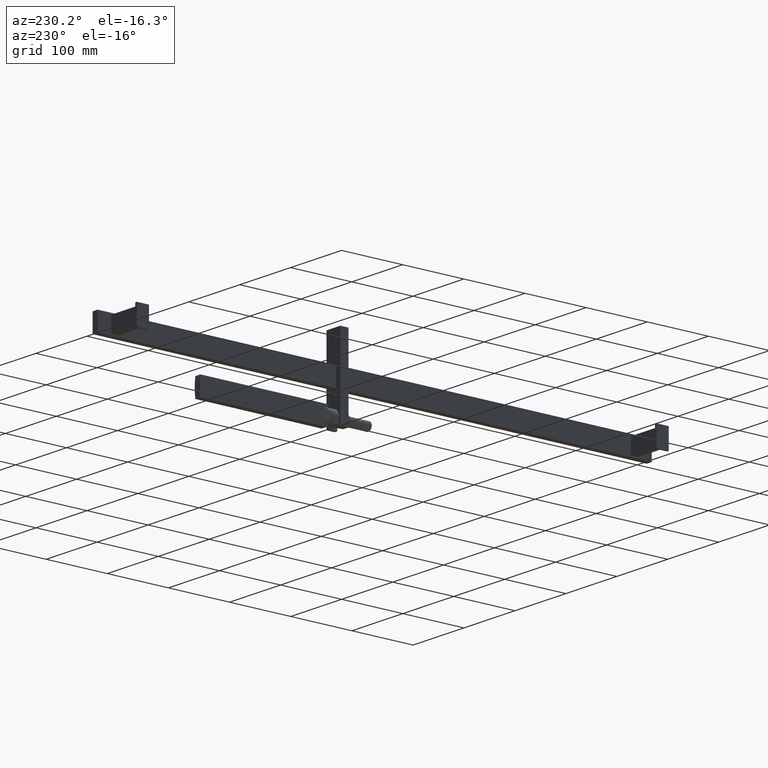
[diagram: clean part render]
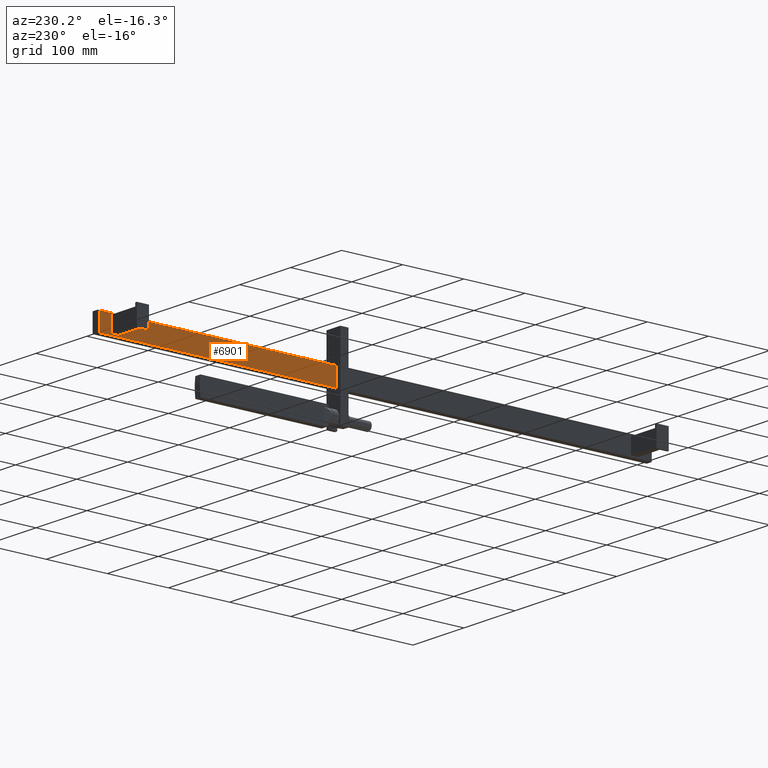
[diagram: same view with one face highlighted and labeled with its STEP entity id]
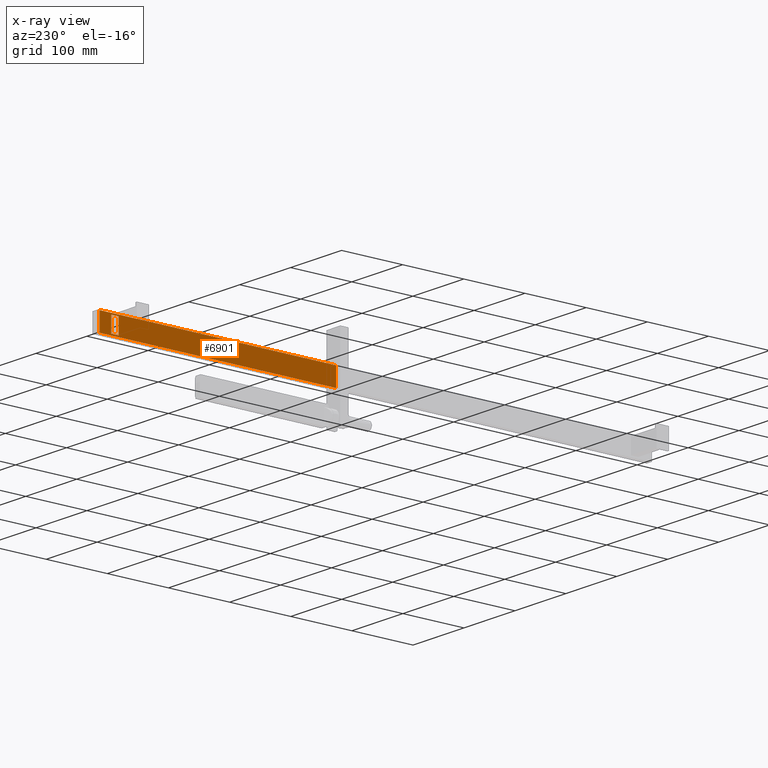
[diagram: x-ray of the same camera — body ghosted, the highlighted face saturated]
A machine part, auxiliary view. The second image highlights one B-rep face of the part: STEP entity #6901.
The next image is the same camera in x-ray: the body ghosted, the highlighted face saturated — about 0% of this face is hidden behind the body in this view.
In plain terms, the highlighted planar face has unit normal (-1, 0, 0).
Its self-contained STEP definition (entity closure, byte-faithful):
#71=DIRECTION('',(0.E0,0.E0,-1.E0));
#72=VECTOR('',#71,2.96E1);
#73=CARTESIAN_POINT('',(5.5E1,6.35E1,1.48E1));
#74=LINE('',#73,#72);
#75=DIRECTION('',(0.E0,1.E0,0.E0));
#76=VECTOR('',#75,1.2E1);
#77=CARTESIAN_POINT('',(5.5E1,4.19E2,1.25E1));
#78=LINE('',#77,#76);
#79=DIRECTION('',(0.E0,0.E0,-1.E0));
#80=VECTOR('',#79,2.5E1);
#81=CARTESIAN_POINT('',(5.5E1,4.31E2,1.25E1));
#82=LINE('',#81,#80);
#83=DIRECTION('',(0.E0,-1.E0,0.E0));
#84=VECTOR('',#83,1.2E1);
#85=CARTESIAN_POINT('',(5.5E1,4.31E2,-1.25E1));
#86=LINE('',#85,#84);
#87=DIRECTION('',(0.E0,0.E0,1.E0));
#88=VECTOR('',#87,2.5E1);
#89=CARTESIAN_POINT('',(5.5E1,4.19E2,-1.25E1));
#90=LINE('',#89,#88);
#4893=DIRECTION('',(0.E0,1.E0,0.E0));
#4894=VECTOR('',#4893,3.865E2);
#4895=CARTESIAN_POINT('',(5.5E1,6.35E1,1.48E1));
#4896=LINE('',#4895,#4894);
#4906=DIRECTION('',(0.E0,0.E0,-1.E0));
#4907=VECTOR('',#4906,2.96E1);
#4908=CARTESIAN_POINT('',(5.5E1,4.5E2,1.48E1));
#4909=LINE('',#4908,#4907);
#4933=DIRECTION('',(0.E0,-1.E0,0.E0));
#4934=VECTOR('',#4933,3.865E2);
#4935=CARTESIAN_POINT('',(5.5E1,4.5E2,-1.48E1));
#4936=LINE('',#4935,#4934);
#5225=CARTESIAN_POINT('',(5.5E1,4.19E2,-1.25E1));
#5226=CARTESIAN_POINT('',(5.5E1,4.19E2,1.25E1));
#5227=VERTEX_POINT('',#5225);
#5228=VERTEX_POINT('',#5226);
#5249=CARTESIAN_POINT('',(5.5E1,6.35E1,1.48E1));
#5250=CARTESIAN_POINT('',(5.5E1,6.35E1,-1.48E1));
#5251=VERTEX_POINT('',#5249);
#5252=VERTEX_POINT('',#5250);
#5253=CARTESIAN_POINT('',(5.5E1,4.5E2,-1.48E1));
#5254=VERTEX_POINT('',#5253);
#5255=CARTESIAN_POINT('',(5.5E1,4.5E2,1.48E1));
#5256=VERTEX_POINT('',#5255);
#5257=CARTESIAN_POINT('',(5.5E1,4.31E2,1.25E1));
#5258=VERTEX_POINT('',#5257);
#5259=CARTESIAN_POINT('',(5.5E1,4.31E2,-1.25E1));
#5260=VERTEX_POINT('',#5259);
#6877=CARTESIAN_POINT('',(5.5E1,4.5E2,-1.5E1));
#6878=DIRECTION('',(-1.E0,0.E0,0.E0));
#6879=DIRECTION('',(0.E0,-1.E0,0.E0));
#6880=AXIS2_PLACEMENT_3D('',#6877,#6878,#6879);
#6881=PLANE('',#6880);
#6883=ORIENTED_EDGE('',*,*,#6882,.T.);
#6885=ORIENTED_EDGE('',*,*,#6884,.F.);
#6887=ORIENTED_EDGE('',*,*,#6886,.F.);
#6889=ORIENTED_EDGE('',*,*,#6888,.F.);
#6890=EDGE_LOOP('',(#6883,#6885,#6887,#6889));
#6891=FACE_OUTER_BOUND('',#6890,.F.);
#6893=ORIENTED_EDGE('',*,*,#6892,.T.);
#6895=ORIENTED_EDGE('',*,*,#6894,.T.);
#6897=ORIENTED_EDGE('',*,*,#6896,.T.);
#6898=ORIENTED_EDGE('',*,*,#6856,.T.);
#6899=EDGE_LOOP('',(#6893,#6895,#6897,#6898));
#6900=FACE_BOUND('',#6899,.F.);
#6901=ADVANCED_FACE('',(#6891,#6900),#6881,.T.);
#6856=EDGE_CURVE('',#5227,#5228,#90,.T.);
#6882=EDGE_CURVE('',#5251,#5252,#74,.T.);
#6884=EDGE_CURVE('',#5254,#5252,#4936,.T.);
#6886=EDGE_CURVE('',#5256,#5254,#4909,.T.);
#6888=EDGE_CURVE('',#5251,#5256,#4896,.T.);
#6892=EDGE_CURVE('',#5228,#5258,#78,.T.);
#6894=EDGE_CURVE('',#5258,#5260,#82,.T.);
#6896=EDGE_CURVE('',#5260,#5227,#86,.T.);